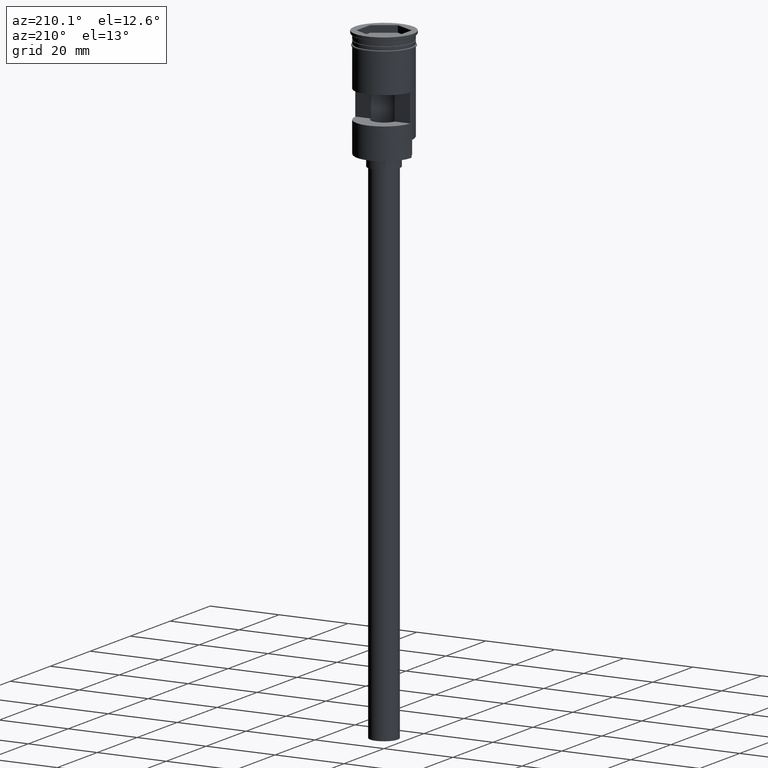
[diagram: clean part render]
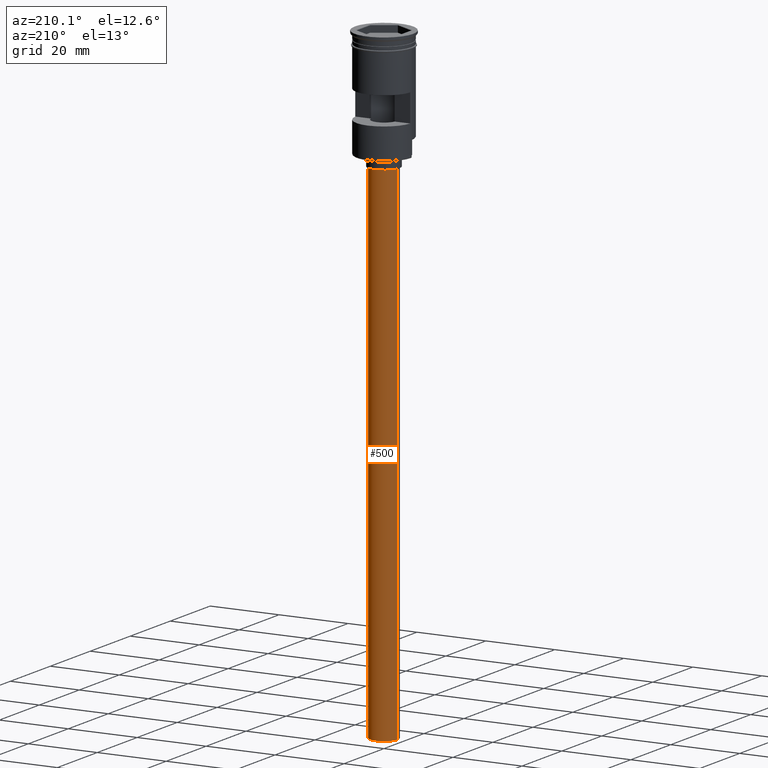
[diagram: same view with one face highlighted and labeled with its STEP entity id]
A machine part, auxiliary view. The second image highlights one B-rep face of the part: STEP entity #500.
In plain terms, the highlighted cylindrical surface (edge-blend (fillet) strip) has radius 4 mm, axis along (-0, -0, 1).
Its self-contained STEP definition (entity closure, byte-faithful):
#57 = VECTOR ( 'NONE', #1149, 1000.000000000000000 ) ;
#69 = DIRECTION ( 'NONE',  ( 1.000000000000000000, 0.000000000000000000, 0.000000000000000000 ) ) ;
#99 = CARTESIAN_POINT ( 'NONE',  ( 0.000000000000000000, 0.000000000000000000, -182.0000000000000000 ) ) ;
#195 = VERTEX_POINT ( 'NONE', #1128 ) ;
#210 = AXIS2_PLACEMENT_3D ( 'NONE', #245, #1232, #281 ) ;
#226 = CARTESIAN_POINT ( 'NONE',  ( 4.000000000000000000, 0.000000000000000000, -182.0000000000000000 ) ) ;
#245 = CARTESIAN_POINT ( 'NONE',  ( 0.000000000000000000, 0.000000000000000000, -35.00000000000000000 ) ) ;
#281 = DIRECTION ( 'NONE',  ( -1.000000000000000000, 0.000000000000000000, 0.000000000000000000 ) ) ;
#349 = LINE ( 'NONE', #226, #1412 ) ;
#373 = EDGE_CURVE ( 'NONE', #555, #195, #652, .T. ) ;
#422 = CIRCLE ( 'NONE', #210, 4.000000000000000000 ) ;
#500 = ADVANCED_FACE ( 'NONE', ( #1438 ), #1080, .T. ) ;
#555 = VERTEX_POINT ( 'NONE', #1570 ) ;
#580 = ORIENTED_EDGE ( 'NONE', *, *, #373, .T. ) ;
#611 = DIRECTION ( 'NONE',  ( -1.000000000000000000, 0.000000000000000000, 0.000000000000000000 ) ) ;
#652 = LINE ( 'NONE', #1033, #57 ) ;
#661 = VERTEX_POINT ( 'NONE', #1403 ) ;
#719 = DIRECTION ( 'NONE',  ( -0.000000000000000000, -0.000000000000000000, 1.000000000000000000 ) ) ;
#735 = VERTEX_POINT ( 'NONE', #1017 ) ;
#770 = ORIENTED_EDGE ( 'NONE', *, *, #1399, .F. ) ;
#806 = DIRECTION ( 'NONE',  ( -0.000000000000000000, -0.000000000000000000, 1.000000000000000000 ) ) ;
#939 = CIRCLE ( 'NONE', #1591, 4.000000000000000000 ) ;
#1017 = CARTESIAN_POINT ( 'NONE',  ( 4.000000000000000000, 0.000000000000000000, -35.00000000000000000 ) ) ;
#1020 = EDGE_CURVE ( 'NONE', #661, #735, #349, .T. ) ;
#1033 = CARTESIAN_POINT ( 'NONE',  ( -4.000000000000000000, 4.898587196589412829E-16, -182.0000000000000000 ) ) ;
#1080 = CYLINDRICAL_SURFACE ( 'NONE', #1217, 4.000000000000000000 ) ;
#1128 = CARTESIAN_POINT ( 'NONE',  ( -4.000000000000000000, 4.898587196589412829E-16, -35.00000000000000000 ) ) ;
#1149 = DIRECTION ( 'NONE',  ( -0.000000000000000000, -0.000000000000000000, 1.000000000000000000 ) ) ;
#1163 = EDGE_CURVE ( 'NONE', #195, #735, #422, .T. ) ;
#1177 = ORIENTED_EDGE ( 'NONE', *, *, #1020, .F. ) ;
#1217 = AXIS2_PLACEMENT_3D ( 'NONE', #99, #806, #69 ) ;
#1232 = DIRECTION ( 'NONE',  ( 0.000000000000000000, 0.000000000000000000, -1.000000000000000000 ) ) ;
#1258 = DIRECTION ( 'NONE',  ( 0.000000000000000000, 0.000000000000000000, -1.000000000000000000 ) ) ;
#1265 = ORIENTED_EDGE ( 'NONE', *, *, #1163, .T. ) ;
#1366 = CARTESIAN_POINT ( 'NONE',  ( 0.000000000000000000, 0.000000000000000000, -182.0000000000000000 ) ) ;
#1399 = EDGE_CURVE ( 'NONE', #555, #661, #939, .T. ) ;
#1403 = CARTESIAN_POINT ( 'NONE',  ( 4.000000000000000000, 0.000000000000000000, -182.0000000000000000 ) ) ;
#1412 = VECTOR ( 'NONE', #719, 1000.000000000000000 ) ;
#1438 = FACE_OUTER_BOUND ( 'NONE', #1578, .T. ) ;
#1570 = CARTESIAN_POINT ( 'NONE',  ( -4.000000000000000000, 4.898587196589412829E-16, -182.0000000000000000 ) ) ;
#1578 = EDGE_LOOP ( 'NONE', ( #770, #580, #1265, #1177 ) ) ;
#1591 = AXIS2_PLACEMENT_3D ( 'NONE', #1366, #1258, #611 ) ;